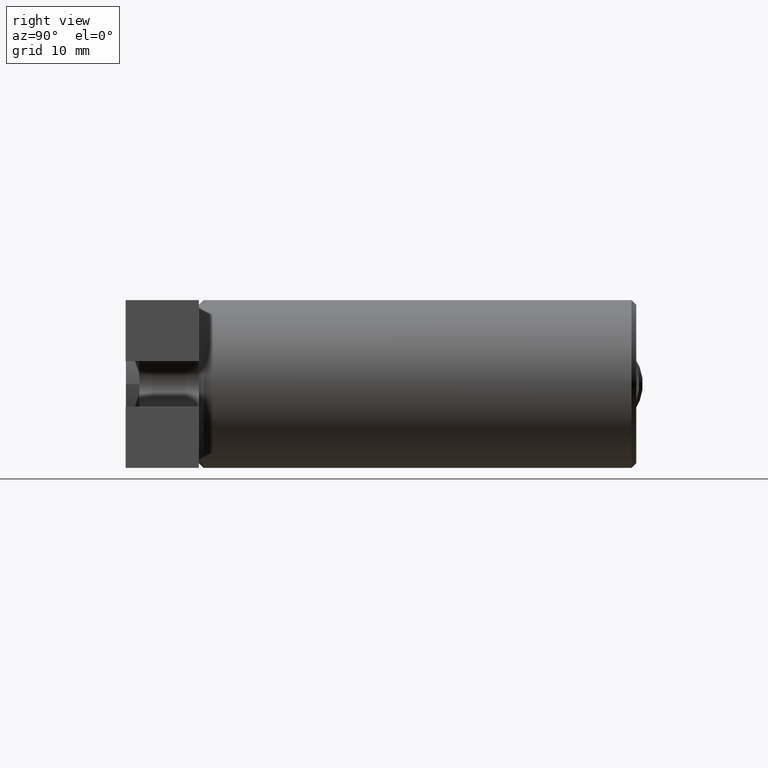
[diagram: clean part render]
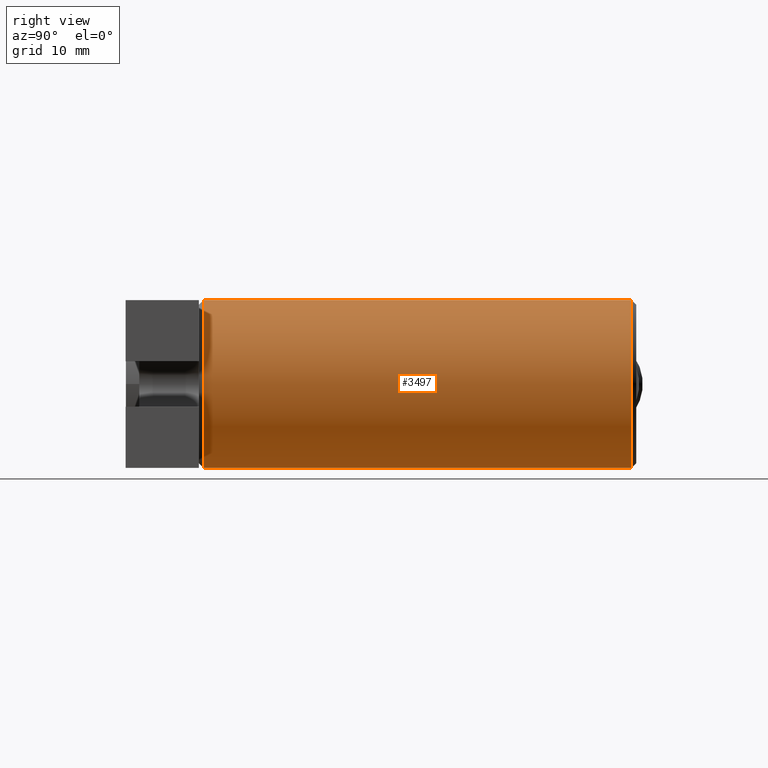
[diagram: same view with one face highlighted and labeled with its STEP entity id]
A machine part, right view. The second image highlights one B-rep face of the part: STEP entity #3497.
In plain terms, the highlighted cylindrical surface (partial cylindrical patch) has radius 12.4968 mm, axis along (-0, -1, -0).
Its self-contained STEP definition (entity closure, byte-faithful):
#23 = AXIS2_PLACEMENT_3D ( 'NONE', #268, #1422, #1972 ) ;
#119 = DIRECTION ( 'NONE',  ( 0.0000000000000000000, 0.0000000000000000000, 1.000000000000000000 ) ) ;
#268 = CARTESIAN_POINT ( 'NONE',  ( 4.123066643891380800, 70.82713478776489100, -1.839923381405735800E-015 ) ) ;
#329 = CYLINDRICAL_SURFACE ( 'NONE', #23, 12.49680000000000600 ) ;
#478 = DIRECTION ( 'NONE',  ( -0.0000000000000000000, -1.000000000000000000, -0.0000000000000000000 ) ) ;
#485 = LINE ( 'NONE', #3730, #1172 ) ;
#533 = VECTOR ( 'NONE', #478, 1000.000000000000000 ) ;
#648 = VERTEX_POINT ( 'NONE', #1524 ) ;
#997 = CIRCLE ( 'NONE', #1718, 12.49680000000000600 ) ;
#1150 = ORIENTED_EDGE ( 'NONE', *, *, #2813, .F. ) ;
#1172 = VECTOR ( 'NONE', #2246, 1000.000000000000000 ) ;
#1374 = AXIS2_PLACEMENT_3D ( 'NONE', #2326, #1473, #1749 ) ;
#1388 = ORIENTED_EDGE ( 'NONE', *, *, #1541, .T. ) ;
#1422 = DIRECTION ( 'NONE',  ( -0.0000000000000000000, -1.000000000000000000, -0.0000000000000000000 ) ) ;
#1473 = DIRECTION ( 'NONE',  ( 0.0000000000000000000, -1.000000000000000000, 0.0000000000000000000 ) ) ;
#1524 = CARTESIAN_POINT ( 'NONE',  ( 4.123066643891382600, 70.12713478776488800, 12.49680000000000400 ) ) ;
#1541 = EDGE_CURVE ( 'NONE', #2214, #2987, #997, .T. ) ;
#1718 = AXIS2_PLACEMENT_3D ( 'NONE', #2189, #2150, #119 ) ;
#1749 = DIRECTION ( 'NONE',  ( 0.0000000000000000000, 0.0000000000000000000, 1.000000000000000000 ) ) ;
#1967 = CARTESIAN_POINT ( 'NONE',  ( 4.123066643891382600, 6.398134787764880600, 12.49680000000000400 ) ) ;
#1972 = DIRECTION ( 'NONE',  ( 0.0000000000000000000, 0.0000000000000000000, -1.000000000000000000 ) ) ;
#1997 = LINE ( 'NONE', #2532, #533 ) ;
#2150 = DIRECTION ( 'NONE',  ( -0.0000000000000000000, 1.000000000000000000, -0.0000000000000000000 ) ) ;
#2174 = EDGE_LOOP ( 'NONE', ( #2369, #2530, #1388, #1150 ) ) ;
#2189 = CARTESIAN_POINT ( 'NONE',  ( 4.123066643891380800, 6.398134787764880600, -1.839923381405735800E-015 ) ) ;
#2209 = CARTESIAN_POINT ( 'NONE',  ( 4.123066643891380800, 70.12713478776488800, -12.49680000000000700 ) ) ;
#2214 = VERTEX_POINT ( 'NONE', #1967 ) ;
#2246 = DIRECTION ( 'NONE',  ( -0.0000000000000000000, -1.000000000000000000, -0.0000000000000000000 ) ) ;
#2253 = EDGE_CURVE ( 'NONE', #2806, #648, #3143, .T. ) ;
#2280 = FACE_OUTER_BOUND ( 'NONE', #2174, .T. ) ;
#2326 = CARTESIAN_POINT ( 'NONE',  ( 4.123066643891380800, 70.12713478776488800, -1.839923381405735800E-015 ) ) ;
#2369 = ORIENTED_EDGE ( 'NONE', *, *, #2253, .T. ) ;
#2530 = ORIENTED_EDGE ( 'NONE', *, *, #3353, .T. ) ;
#2532 = CARTESIAN_POINT ( 'NONE',  ( 4.123066643891380800, 70.82713478776489100, -12.49680000000000700 ) ) ;
#2626 = CARTESIAN_POINT ( 'NONE',  ( 4.123066643891380800, 6.398134787764880600, -12.49680000000000700 ) ) ;
#2806 = VERTEX_POINT ( 'NONE', #2209 ) ;
#2813 = EDGE_CURVE ( 'NONE', #2806, #2987, #1997, .T. ) ;
#2987 = VERTEX_POINT ( 'NONE', #2626 ) ;
#3143 = CIRCLE ( 'NONE', #1374, 12.49680000000000600 ) ;
#3353 = EDGE_CURVE ( 'NONE', #648, #2214, #485, .T. ) ;
#3497 = ADVANCED_FACE ( 'NONE', ( #2280 ), #329, .T. ) ;
#3730 = CARTESIAN_POINT ( 'NONE',  ( 4.123066643891382600, 70.82713478776489100, 12.49680000000000400 ) ) ;